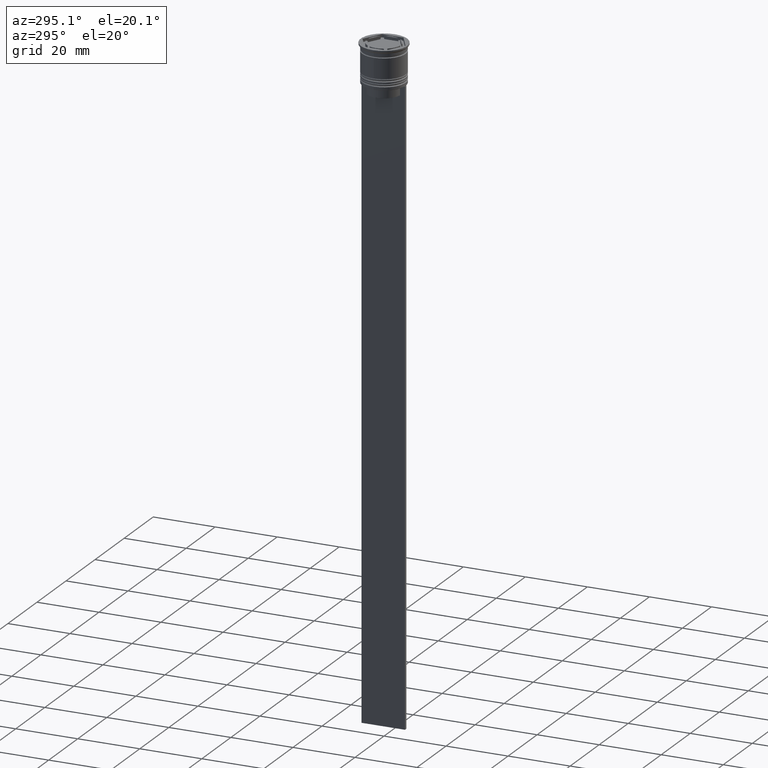
[diagram: clean part render]
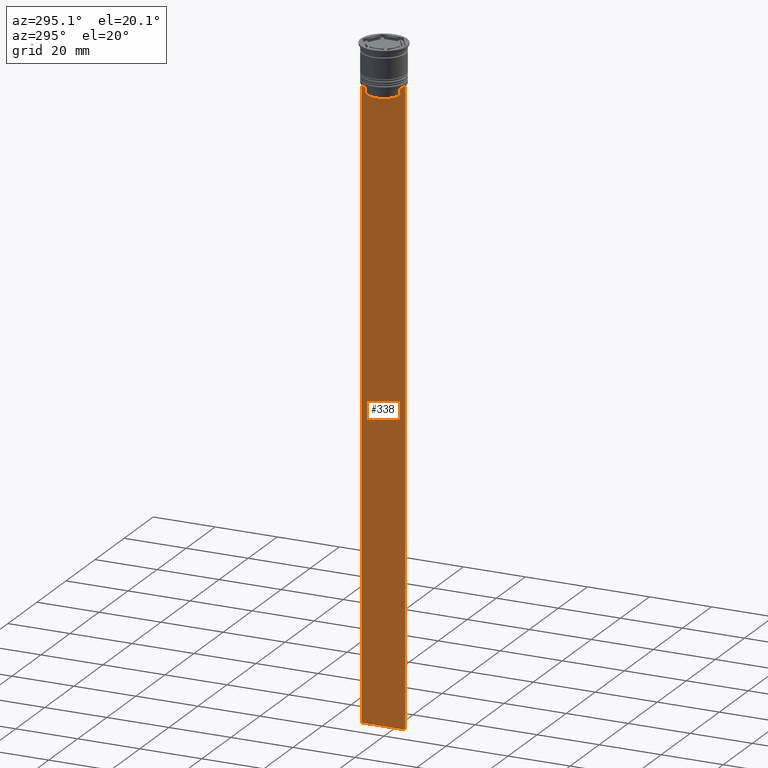
[diagram: same view with one face highlighted and labeled with its STEP entity id]
A machine part, auxiliary view. The second image highlights one B-rep face of the part: STEP entity #338.
In plain terms, the highlighted planar face has unit normal (-1, 0, 0).
Its self-contained STEP definition (entity closure, byte-faithful):
#21 = EDGE_CURVE ( 'NONE', #806, #1134, #2026, .T. ) ;
#35 = LINE ( 'NONE', #1329, #303 ) ;
#38 = DIRECTION ( 'NONE',  ( 0.000000000000000000, 1.000000000000000000, 0.000000000000000000 ) ) ;
#44 = VERTEX_POINT ( 'NONE', #1842 ) ;
#52 = ORIENTED_EDGE ( 'NONE', *, *, #1191, .F. ) ;
#65 = CARTESIAN_POINT ( 'NONE',  ( -0.5000000000000000000, -5.878775382679629402, -12.50000000000000000 ) ) ;
#96 = VECTOR ( 'NONE', #1987, 1000.000000000000000 ) ;
#149 = EDGE_LOOP ( 'NONE', ( #1414, #2423, #459, #534, #52, #1488, #1145, #2065, #341, #847, #508, #2261 ) ) ;
#199 = CARTESIAN_POINT ( 'NONE',  ( -0.5000000000000000000, -5.376802023508029826, -15.50000000000000000 ) ) ;
#212 = CARTESIAN_POINT ( 'NONE',  ( -0.5000000000000000000, -5.544156999454441959, -12.83336396790503642 ) ) ;
#230 = CARTESIAN_POINT ( 'NONE',  ( -0.5000000000000000000, -5.711478856069293286, -12.66669469529570335 ) ) ;
#237 = CARTESIAN_POINT ( 'NONE',  ( -0.5000000000000000000, -6.999999999999997335, -212.5000000000000284 ) ) ;
#267 = EDGE_CURVE ( 'NONE', #699, #506, #1032, .T. ) ;
#282 = VERTEX_POINT ( 'NONE', #1129 ) ;
#303 = VECTOR ( 'NONE', #370, 1000.000000000000000 ) ;
#338 = ADVANCED_FACE ( 'NONE', ( #1715 ), #1534, .T. ) ;
#341 = ORIENTED_EDGE ( 'NONE', *, *, #267, .F. ) ;
#370 = DIRECTION ( 'NONE',  ( 0.000000000000000000, -1.000000000000000000, 0.000000000000000000 ) ) ;
#391 = VECTOR ( 'NONE', #2371, 1000.000000000000000 ) ;
#404 = EDGE_CURVE ( 'NONE', #1952, #806, #2309, .T. ) ;
#459 = ORIENTED_EDGE ( 'NONE', *, *, #1602, .F. ) ;
#506 = VERTEX_POINT ( 'NONE', #1252 ) ;
#508 = ORIENTED_EDGE ( 'NONE', *, *, #1964, .F. ) ;
#521 = DIRECTION ( 'NONE',  ( 0.000000000000000000, -1.000000000000000000, 0.000000000000000000 ) ) ;
#534 = ORIENTED_EDGE ( 'NONE', *, *, #1689, .T. ) ;
#548 = EDGE_CURVE ( 'NONE', #282, #936, #744, .T. ) ;
#549 = CARTESIAN_POINT ( 'NONE',  ( -0.5000000000000000000, -6.999999999999997335, -12.50000000000000000 ) ) ;
#610 = CARTESIAN_POINT ( 'NONE',  ( -0.5000000000000000000, 7.000000000000002665, 1.535668847618198329 ) ) ;
#668 = LINE ( 'NONE', #679, #1661 ) ;
#679 = CARTESIAN_POINT ( 'NONE',  ( -0.5000000000000000000, 5.400000000000003908, -15.50000000000000000 ) ) ;
#696 = CARTESIAN_POINT ( 'NONE',  ( -0.5000000000000000000, 5.711478846560141598, -12.66669470477064685 ) ) ;
#699 = VERTEX_POINT ( 'NONE', #731 ) ;
#731 = CARTESIAN_POINT ( 'NONE',  ( -0.5000000000000000000, -5.376802023508029826, -13.00000000000000178 ) ) ;
#744 = LINE ( 'NONE', #1500, #391 ) ;
#761 = VERTEX_POINT ( 'NONE', #800 ) ;
#791 = EDGE_CURVE ( 'NONE', #506, #2081, #958, .T. ) ;
#800 = CARTESIAN_POINT ( 'NONE',  ( -0.5000000000000000000, 6.881860213634102053, -12.50000000000000000 ) ) ;
#806 = VERTEX_POINT ( 'NONE', #1373 ) ;
#847 = ORIENTED_EDGE ( 'NONE', *, *, #1859, .F. ) ;
#870 = CARTESIAN_POINT ( 'NONE',  ( -0.5000000000000000000, -6.999999999999997335, -212.5000000000000284 ) ) ;
#936 = VERTEX_POINT ( 'NONE', #870 ) ;
#958 = LINE ( 'NONE', #1553, #2078 ) ;
#994 = LINE ( 'NONE', #610, #1101 ) ;
#998 = CARTESIAN_POINT ( 'NONE',  ( -0.5000000000000000000, -6.999999999999997335, -12.50000000000000000 ) ) ;
#1011 = LINE ( 'NONE', #1768, #96 ) ;
#1032 = B_SPLINE_CURVE_WITH_KNOTS ( 'NONE', 3,
 ( #1944, #212, #230, #65 ),
 .UNSPECIFIED., .F., .F.,
 ( 4, 4 ),
 ( 0.02539176325380714666, 0.02610162431828674801 ),
 .UNSPECIFIED. ) ;
#1036 = VERTEX_POINT ( 'NONE', #2243 ) ;
#1101 = VECTOR ( 'NONE', #2470, 1000.000000000000000 ) ;
#1129 = CARTESIAN_POINT ( 'NONE',  ( -0.5000000000000000000, -6.999999999999997335, -12.50000000000000000 ) ) ;
#1134 = VERTEX_POINT ( 'NONE', #1647 ) ;
#1137 = VECTOR ( 'NONE', #38, 1000.000000000000000 ) ;
#1145 = ORIENTED_EDGE ( 'NONE', *, *, #2111, .F. ) ;
#1180 = EDGE_CURVE ( 'NONE', #761, #1952, #1549, .T. ) ;
#1191 = EDGE_CURVE ( 'NONE', #936, #1036, #1755, .T. ) ;
#1219 = DIRECTION ( 'NONE',  ( 0.000000000000000000, 0.000000000000000000, 1.000000000000000000 ) ) ;
#1252 = CARTESIAN_POINT ( 'NONE',  ( -0.5000000000000000000, -5.878775382679629402, -12.50000000000000000 ) ) ;
#1329 = CARTESIAN_POINT ( 'NONE',  ( -0.5000000000000000000, -6.999999999999997335, -12.50000000000000000 ) ) ;
#1373 = CARTESIAN_POINT ( 'NONE',  ( -0.5000000000000000000, 5.376802023508029826, -13.00000000000000178 ) ) ;
#1414 = ORIENTED_EDGE ( 'NONE', *, *, #404, .F. ) ;
#1488 = ORIENTED_EDGE ( 'NONE', *, *, #548, .F. ) ;
#1500 = CARTESIAN_POINT ( 'NONE',  ( -0.5000000000000000000, -6.999999999999997335, 1.535668847618198329 ) ) ;
#1534 = PLANE ( 'NONE',  #1670 ) ;
#1536 = DIRECTION ( 'NONE',  ( 0.000000000000000000, -1.000000000000000000, 0.000000000000000000 ) ) ;
#1541 = LINE ( 'NONE', #549, #2228 ) ;
#1549 = LINE ( 'NONE', #998, #1652 ) ;
#1553 = CARTESIAN_POINT ( 'NONE',  ( -0.5000000000000000000, -6.999999999999997335, -12.50000000000000000 ) ) ;
#1602 = EDGE_CURVE ( 'NONE', #44, #761, #35, .T. ) ;
#1647 = CARTESIAN_POINT ( 'NONE',  ( -0.5000000000000000000, 5.376802023508029826, -15.50000000000000000 ) ) ;
#1652 = VECTOR ( 'NONE', #1536, 1000.000000000000000 ) ;
#1661 = VECTOR ( 'NONE', #521, 1000.000000000000000 ) ;
#1670 = AXIS2_PLACEMENT_3D ( 'NONE', #2307, #2213, #1219 ) ;
#1689 = EDGE_CURVE ( 'NONE', #44, #1036, #994, .T. ) ;
#1703 = CARTESIAN_POINT ( 'NONE',  ( -0.5000000000000000000, 5.376802023508029826, -13.00000000000000178 ) ) ;
#1715 = FACE_OUTER_BOUND ( 'NONE', #149, .T. ) ;
#1720 = DIRECTION ( 'NONE',  ( 0.000000000000000000, -1.000000000000000000, 0.000000000000000000 ) ) ;
#1755 = LINE ( 'NONE', #237, #1137 ) ;
#1768 = CARTESIAN_POINT ( 'NONE',  ( -0.5000000000000000000, -5.376802023508029826, 0.000000000000000000 ) ) ;
#1830 = DIRECTION ( 'NONE',  ( 0.000000000000000000, 0.000000000000000000, -1.000000000000000000 ) ) ;
#1842 = CARTESIAN_POINT ( 'NONE',  ( -0.5000000000000000000, 7.000000000000002665, -12.50000000000000000 ) ) ;
#1859 = EDGE_CURVE ( 'NONE', #2009, #699, #1011, .T. ) ;
#1916 = VECTOR ( 'NONE', #1830, 1000.000000000000000 ) ;
#1944 = CARTESIAN_POINT ( 'NONE',  ( -0.5000000000000000000, -5.376802023508029826, -13.00000000000000178 ) ) ;
#1952 = VERTEX_POINT ( 'NONE', #2413 ) ;
#1964 = EDGE_CURVE ( 'NONE', #1134, #2009, #668, .T. ) ;
#1987 = DIRECTION ( 'NONE',  ( -0.000000000000000000, -0.000000000000000000, 1.000000000000000000 ) ) ;
#2009 = VERTEX_POINT ( 'NONE', #199 ) ;
#2014 = CARTESIAN_POINT ( 'NONE',  ( -0.5000000000000000000, 5.878775382679629402, -12.50000000000000000 ) ) ;
#2026 = LINE ( 'NONE', #2221, #1916 ) ;
#2045 = CARTESIAN_POINT ( 'NONE',  ( -0.5000000000000000000, 5.544156989057553275, -12.83336397825725861 ) ) ;
#2065 = ORIENTED_EDGE ( 'NONE', *, *, #791, .F. ) ;
#2078 = VECTOR ( 'NONE', #1720, 1000.000000000000000 ) ;
#2081 = VERTEX_POINT ( 'NONE', #2289 ) ;
#2111 = EDGE_CURVE ( 'NONE', #2081, #282, #1541, .T. ) ;
#2213 = DIRECTION ( 'NONE',  ( -1.000000000000000000, 0.000000000000000000, 0.000000000000000000 ) ) ;
#2221 = CARTESIAN_POINT ( 'NONE',  ( -0.5000000000000000000, 5.376802023508029826, 0.000000000000000000 ) ) ;
#2228 = VECTOR ( 'NONE', #2466, 1000.000000000000000 ) ;
#2243 = CARTESIAN_POINT ( 'NONE',  ( -0.5000000000000000000, 7.000000000000002665, -212.5000000000000284 ) ) ;
#2261 = ORIENTED_EDGE ( 'NONE', *, *, #21, .F. ) ;
#2289 = CARTESIAN_POINT ( 'NONE',  ( -0.5000000000000000000, -6.881860213634102053, -12.50000000000000000 ) ) ;
#2307 = CARTESIAN_POINT ( 'NONE',  ( -0.5000000000000000000, -6.999999999999997335, 1.535668847618198329 ) ) ;
#2309 = B_SPLINE_CURVE_WITH_KNOTS ( 'NONE', 3,
 ( #2014, #696, #2045, #1703 ),
 .UNSPECIFIED., .F., .F.,
 ( 4, 4 ),
 ( 0.01003009312103698807, 0.01073859663834952557 ),
 .UNSPECIFIED. ) ;
#2371 = DIRECTION ( 'NONE',  ( 0.000000000000000000, 0.000000000000000000, -1.000000000000000000 ) ) ;
#2413 = CARTESIAN_POINT ( 'NONE',  ( -0.5000000000000000000, 5.878775382679629402, -12.50000000000000000 ) ) ;
#2423 = ORIENTED_EDGE ( 'NONE', *, *, #1180, .F. ) ;
#2466 = DIRECTION ( 'NONE',  ( 0.000000000000000000, -1.000000000000000000, 0.000000000000000000 ) ) ;
#2470 = DIRECTION ( 'NONE',  ( 0.000000000000000000, 0.000000000000000000, -1.000000000000000000 ) ) ;